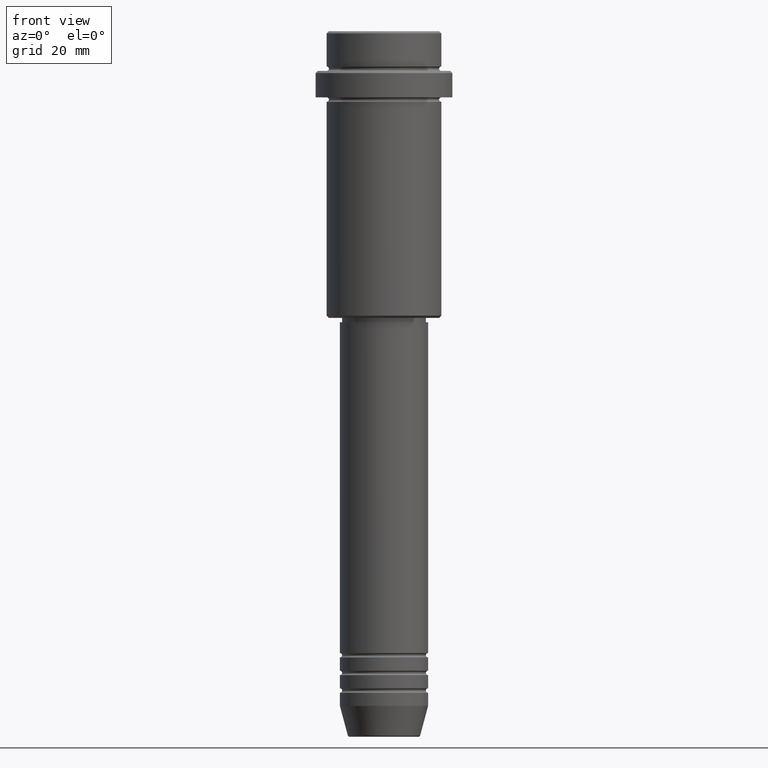
[diagram: clean part render]
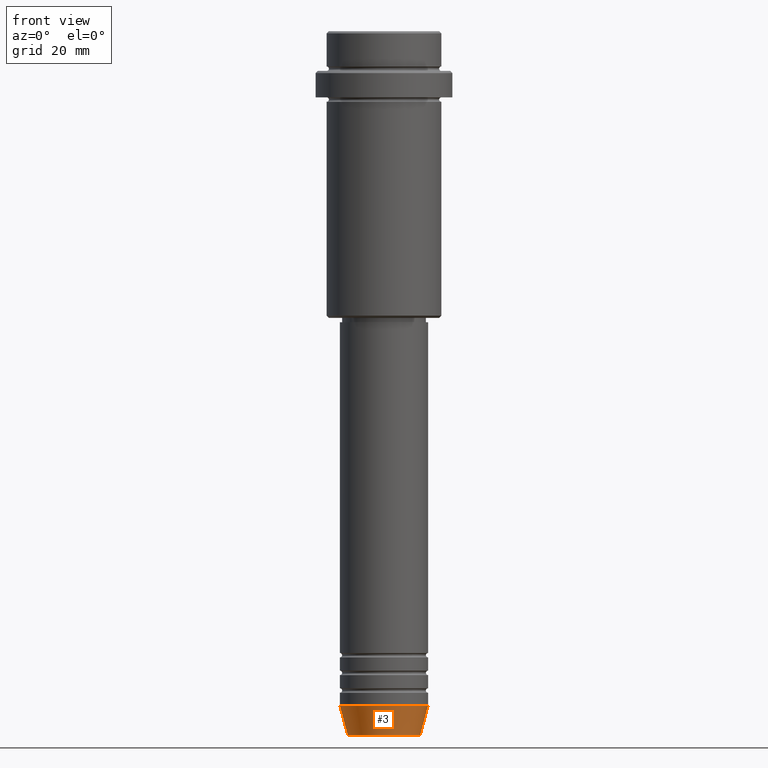
[diagram: same view with one face highlighted and labeled with its STEP entity id]
A machine part, front view. The second image highlights one B-rep face of the part: STEP entity #3.
In plain terms, the highlighted conical surface has half-angle 15 deg.
Its self-contained STEP definition (entity closure, byte-faithful):
#3 = ADVANCED_FACE ( 'NONE', ( #1034 ), #1312, .T. ) ;
#11 = AXIS2_PLACEMENT_3D ( 'NONE', #1237, #600, #259 ) ;
#19 = VERTEX_POINT ( 'NONE', #409 ) ;
#70 = DIRECTION ( 'NONE',  ( -0.000000000000000000, -0.000000000000000000, 1.000000000000000000 ) ) ;
#97 = VERTEX_POINT ( 'NONE', #372 ) ;
#157 = CARTESIAN_POINT ( 'NONE',  ( -10.00000000000000000, 1.224646799147353256E-15, -153.0000000000000000 ) ) ;
#171 = LINE ( 'NONE', #178, #275 ) ;
#178 = CARTESIAN_POINT ( 'NONE',  ( 10.00000000000000000, 0.000000000000000000, -153.0000000000000000 ) ) ;
#186 = LINE ( 'NONE', #970, #218 ) ;
#214 = CIRCLE ( 'NONE', #1027, 10.00000000000000000 ) ;
#218 = VECTOR ( 'NONE', #730, 1000.000000000000114 ) ;
#222 = VERTEX_POINT ( 'NONE', #652 ) ;
#259 = DIRECTION ( 'NONE',  ( 1.000000000000000000, 0.000000000000000000, 0.000000000000000000 ) ) ;
#275 = VECTOR ( 'NONE', #613, 1000.000000000000114 ) ;
#282 = EDGE_CURVE ( 'NONE', #19, #222, #171, .T. ) ;
#314 = CARTESIAN_POINT ( 'NONE',  ( 0.000000000000000000, 0.000000000000000000, -153.0000000000000000 ) ) ;
#371 = DIRECTION ( 'NONE',  ( 1.000000000000000000, 0.000000000000000000, 0.000000000000000000 ) ) ;
#372 = CARTESIAN_POINT ( 'NONE',  ( -8.223655072137189492, 1.115877042642911856E-15, -159.6294095225512422 ) ) ;
#391 = ORIENTED_EDGE ( 'NONE', *, *, #1276, .F. ) ;
#409 = CARTESIAN_POINT ( 'NONE',  ( 8.223655072137189492, 0.000000000000000000, -159.6294095225512422 ) ) ;
#600 = DIRECTION ( 'NONE',  ( -0.000000000000000000, -0.000000000000000000, 1.000000000000000000 ) ) ;
#613 = DIRECTION ( 'NONE',  ( 0.2588190451025214611, 0.000000000000000000, 0.9659258262890679791 ) ) ;
#652 = CARTESIAN_POINT ( 'NONE',  ( 10.00000000000000000, 0.000000000000000000, -153.0000000000000000 ) ) ;
#683 = ORIENTED_EDGE ( 'NONE', *, *, #889, .F. ) ;
#704 = AXIS2_PLACEMENT_3D ( 'NONE', #789, #802, #371 ) ;
#730 = DIRECTION ( 'NONE',  ( -0.2588190451025214611, 3.169619151431774186E-17, 0.9659258262890679791 ) ) ;
#779 = VERTEX_POINT ( 'NONE', #157 ) ;
#789 = CARTESIAN_POINT ( 'NONE',  ( 0.000000000000000000, 0.000000000000000000, -153.0000000000000000 ) ) ;
#802 = DIRECTION ( 'NONE',  ( -0.000000000000000000, -0.000000000000000000, 1.000000000000000000 ) ) ;
#889 = EDGE_CURVE ( 'NONE', #779, #222, #214, .T. ) ;
#935 = CIRCLE ( 'NONE', #11, 8.223655072137189492 ) ;
#970 = CARTESIAN_POINT ( 'NONE',  ( -10.00000000000000000, 1.224646799147353256E-15, -153.0000000000000000 ) ) ;
#988 = EDGE_LOOP ( 'NONE', ( #391, #1270, #1392, #683 ) ) ;
#1027 = AXIS2_PLACEMENT_3D ( 'NONE', #314, #70, #1078 ) ;
#1034 = FACE_OUTER_BOUND ( 'NONE', #988, .T. ) ;
#1078 = DIRECTION ( 'NONE',  ( 1.000000000000000000, 0.000000000000000000, 0.000000000000000000 ) ) ;
#1155 = EDGE_CURVE ( 'NONE', #97, #19, #935, .T. ) ;
#1237 = CARTESIAN_POINT ( 'NONE',  ( 0.000000000000000000, 0.000000000000000000, -159.6294095225512422 ) ) ;
#1270 = ORIENTED_EDGE ( 'NONE', *, *, #1155, .T. ) ;
#1276 = EDGE_CURVE ( 'NONE', #97, #779, #186, .T. ) ;
#1312 = CONICAL_SURFACE ( 'NONE', #704, 10.00000000000000000, 0.2617993877991502405 ) ;
#1392 = ORIENTED_EDGE ( 'NONE', *, *, #282, .T. ) ;